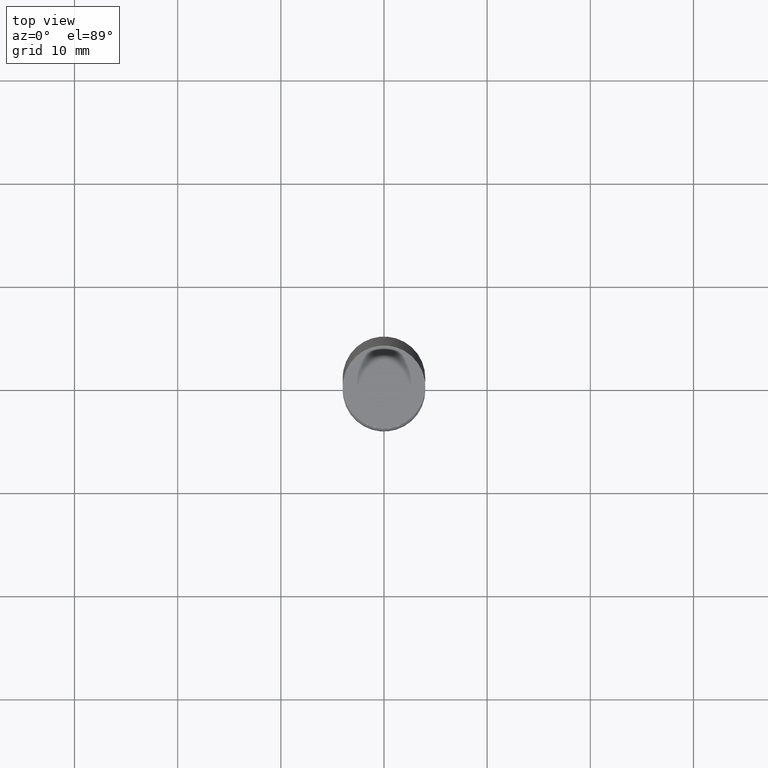
[diagram: clean part render]
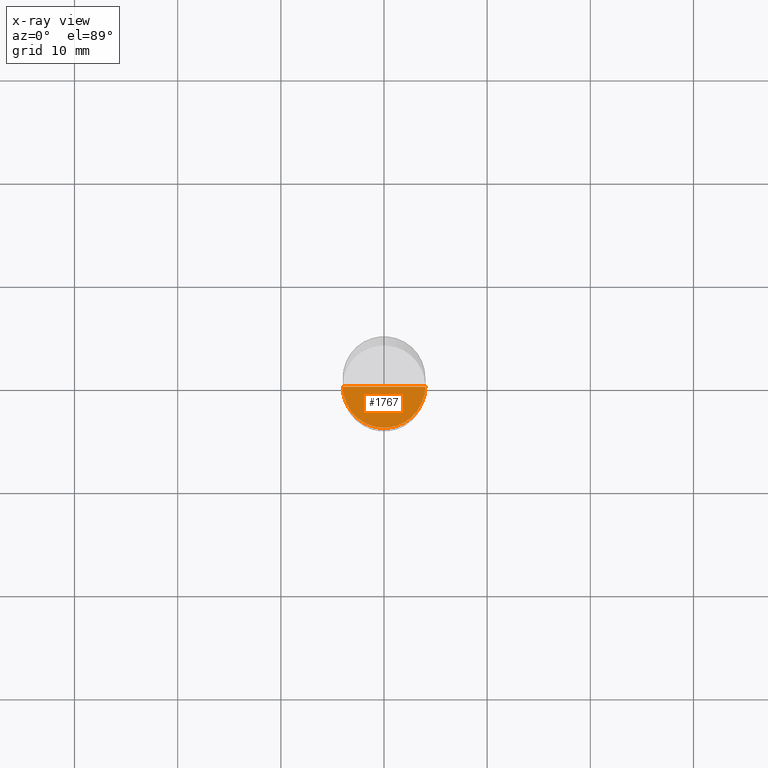
[diagram: x-ray — body ghosted, one internal face saturated and labeled with its STEP entity id]
A machine part, top view, then the same camera in x-ray: the body is ghosted and one INTERNAL B-rep face — a face not visible from any outside direction — is saturated and labeled: STEP entity #1767.
In plain terms, the highlighted face is a freeform B-spline surface patch.
Its self-contained STEP definition (entity closure, byte-faithful):
#1574=CARTESIAN_POINT('',(4.0,0.0,0.0));
#1578=CARTESIAN_POINT('',(-4.0,0.0,0.0));
#1579=CARTESIAN_POINT('',(0.0,0.0,0.0));
#1595=CARTESIAN_POINT('',(-4.0,-4.0,0.0));
#1596=CARTESIAN_POINT('',(0.0,-4.0,0.0));
#1597=CARTESIAN_POINT('',(4.0,-4.0,0.0));
#1752=(
BOUNDED_SURFACE()
B_SPLINE_SURFACE(1,2,(
(#1578,#1595,#1596,#1597,#1574),
(#1579,#1579,#1579,#1579,#1579)
), .UNSPECIFIED.,.F.,.F.,.F.)
B_SPLINE_SURFACE_WITH_KNOTS((2,2),(3,2,3),(
0.0,1.0),(
0.0,0.5,1.0), .UNSPECIFIED.)
GEOMETRIC_REPRESENTATION_ITEM()
RATIONAL_B_SPLINE_SURFACE(((1.0,0.707106781187,1.0,0.707106781187,1.0),
(1.0,0.707106781187,1.0,0.707106781187,1.0)
))
REPRESENTATION_ITEM('')
SURFACE()
);
#1753=(
BOUNDED_CURVE()
B_SPLINE_CURVE(1,(#1579,#1574),.UNSPECIFIED.,.F.,.F.)
B_SPLINE_CURVE_WITH_KNOTS((2,2),
(0.0,1.0),.UNSPECIFIED.)
CURVE()
GEOMETRIC_REPRESENTATION_ITEM()
RATIONAL_B_SPLINE_CURVE((1.0,1.0))
REPRESENTATION_ITEM('')
);
#1754=(
BOUNDED_CURVE()
B_SPLINE_CURVE(2,(#1574,#1597,#1596,#1595,#1578),.UNSPECIFIED.,.F.,.F.)
B_SPLINE_CURVE_WITH_KNOTS((3,2,3),
(0.0,0.5,1.0),.UNSPECIFIED.)
CURVE()
GEOMETRIC_REPRESENTATION_ITEM()
RATIONAL_B_SPLINE_CURVE((1.0,0.707106781187,1.0,0.707106781187,1.0))
REPRESENTATION_ITEM('')
);
#1755=(
BOUNDED_CURVE()
B_SPLINE_CURVE(1,(#1578,#1579),.UNSPECIFIED.,.F.,.F.)
B_SPLINE_CURVE_WITH_KNOTS((2,2),
(0.0,1.0),.UNSPECIFIED.)
CURVE()
GEOMETRIC_REPRESENTATION_ITEM()
RATIONAL_B_SPLINE_CURVE((1.0,1.0))
REPRESENTATION_ITEM('')
);
#1756=VERTEX_POINT('',#1574);
#1757=VERTEX_POINT('',#1578);
#1758=VERTEX_POINT('',#1579);
#1759=EDGE_CURVE('',#1758,#1756,#1753,.T.);
#1760=EDGE_CURVE('',#1756,#1757,#1754,.T.);
#1761=EDGE_CURVE('',#1757,#1758,#1755,.T.);
#1762=ORIENTED_EDGE('',*,*,#1759,.T.);
#1763=ORIENTED_EDGE('',*,*,#1760,.T.);
#1764=ORIENTED_EDGE('',*,*,#1761,.T.);
#1765=EDGE_LOOP('',(#1762,#1763,#1764));
#1766=FACE_OUTER_BOUND('',#1765,.T.);
#1767=ADVANCED_FACE('',(#1766),#1752,.T.);